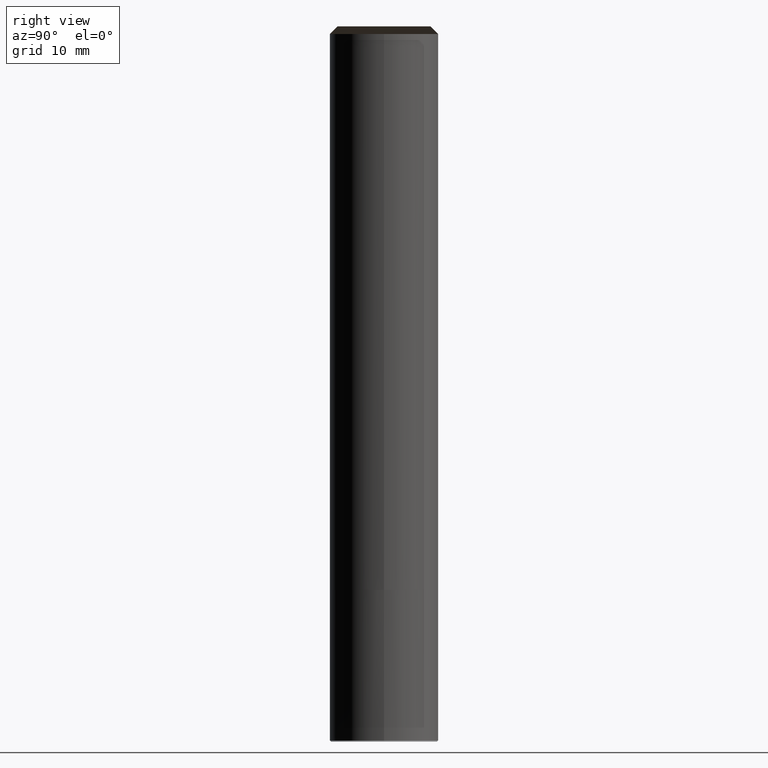
[diagram: clean part render]
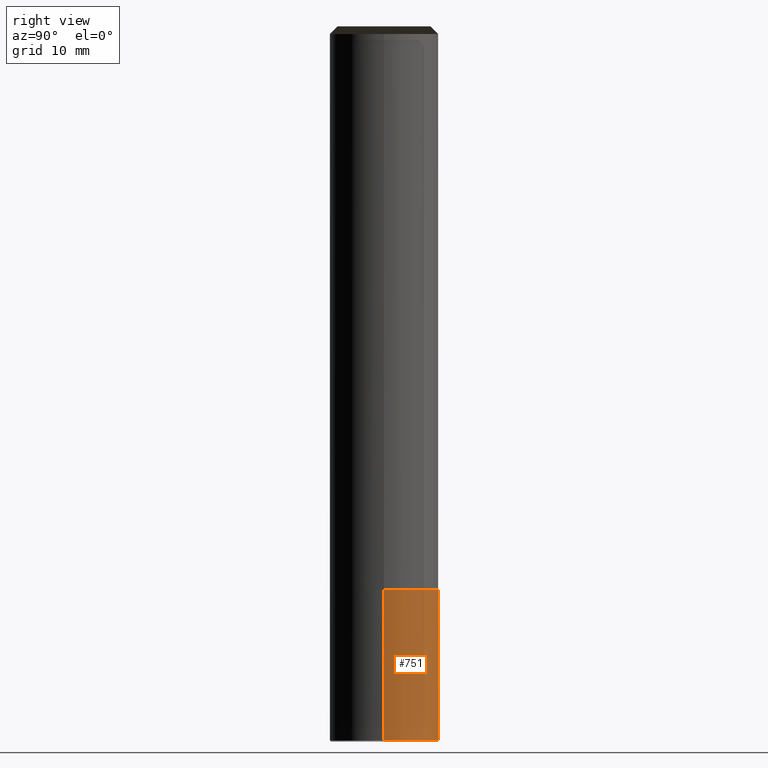
[diagram: same view with one face highlighted and labeled with its STEP entity id]
A machine part, right view. The second image highlights one B-rep face of the part: STEP entity #751.
In plain terms, the highlighted face is a freeform B-spline surface patch.
Its self-contained STEP definition (entity closure, byte-faithful):
#645=CARTESIAN_POINT('',(5.0,0.0,-13.901));
#646=CARTESIAN_POINT('',(5.0,5.0,-13.901));
#647=CARTESIAN_POINT('',(0.0,5.0,-13.901));
#648=CARTESIAN_POINT('',(-5.0,5.0,-13.901));
#649=CARTESIAN_POINT('',(-5.0,0.0,-13.901));
#650=CARTESIAN_POINT('',(5.0,0.0,-0.001));
#651=CARTESIAN_POINT('',(5.0,5.0,-0.001));
#652=CARTESIAN_POINT('',(0.0,5.0,-0.001));
#653=CARTESIAN_POINT('',(-5.0,5.0,-0.001));
#654=CARTESIAN_POINT('',(-5.0,0.0,-0.001));
#732=(
BOUNDED_SURFACE()
B_SPLINE_SURFACE(1,2,(
(#645,#646,#647,#648,#649),
(#650,#651,#652,#653,#654)
), .UNSPECIFIED.,.F.,.F.,.F.)
B_SPLINE_SURFACE_WITH_KNOTS((2,2),(3,2,3),(
0.0,1.0),(
0.0,0.5,1.0), .UNSPECIFIED.)
GEOMETRIC_REPRESENTATION_ITEM()
RATIONAL_B_SPLINE_SURFACE(((1.0,0.707106781187,1.0,0.707106781187,1.0),
(1.0,0.707106781187,1.0,0.707106781187,1.0)
))
REPRESENTATION_ITEM('')
SURFACE()
);
#733=(
BOUNDED_CURVE()
B_SPLINE_CURVE(2,(#650,#651,#652,#653,#654),.UNSPECIFIED.,.F.,.F.)
B_SPLINE_CURVE_WITH_KNOTS((3,2,3),
(0.0,0.5,1.0),.UNSPECIFIED.)
CURVE()
GEOMETRIC_REPRESENTATION_ITEM()
RATIONAL_B_SPLINE_CURVE((1.0,0.707106781187,1.0,0.707106781187,1.0))
REPRESENTATION_ITEM('')
);
#734=(
BOUNDED_CURVE()
B_SPLINE_CURVE(1,(#654,#649),.UNSPECIFIED.,.F.,.F.)
B_SPLINE_CURVE_WITH_KNOTS((2,2),
(0.0,1.0),.UNSPECIFIED.)
CURVE()
GEOMETRIC_REPRESENTATION_ITEM()
RATIONAL_B_SPLINE_CURVE((1.0,1.0))
REPRESENTATION_ITEM('')
);
#735=(
BOUNDED_CURVE()
B_SPLINE_CURVE(2,(#649,#648,#647,#646,#645),.UNSPECIFIED.,.F.,.F.)
B_SPLINE_CURVE_WITH_KNOTS((3,2,3),
(0.0,0.5,1.0),.UNSPECIFIED.)
CURVE()
GEOMETRIC_REPRESENTATION_ITEM()
RATIONAL_B_SPLINE_CURVE((1.0,0.707106781187,1.0,0.707106781187,1.0))
REPRESENTATION_ITEM('')
);
#736=(
BOUNDED_CURVE()
B_SPLINE_CURVE(1,(#645,#650),.UNSPECIFIED.,.F.,.F.)
B_SPLINE_CURVE_WITH_KNOTS((2,2),
(0.0,1.0),.UNSPECIFIED.)
CURVE()
GEOMETRIC_REPRESENTATION_ITEM()
RATIONAL_B_SPLINE_CURVE((1.0,1.0))
REPRESENTATION_ITEM('')
);
#737=VERTEX_POINT('',#645);
#738=VERTEX_POINT('',#649);
#739=VERTEX_POINT('',#650);
#740=VERTEX_POINT('',#654);
#741=EDGE_CURVE('',#739,#740,#733,.T.);
#742=EDGE_CURVE('',#740,#738,#734,.T.);
#743=EDGE_CURVE('',#738,#737,#735,.T.);
#744=EDGE_CURVE('',#737,#739,#736,.T.);
#745=ORIENTED_EDGE('',*,*,#741,.T.);
#746=ORIENTED_EDGE('',*,*,#742,.T.);
#747=ORIENTED_EDGE('',*,*,#743,.T.);
#748=ORIENTED_EDGE('',*,*,#744,.T.);
#749=EDGE_LOOP('',(#745,#746,#747,#748));
#750=FACE_OUTER_BOUND('',#749,.T.);
#751=ADVANCED_FACE('',(#750),#732,.T.);